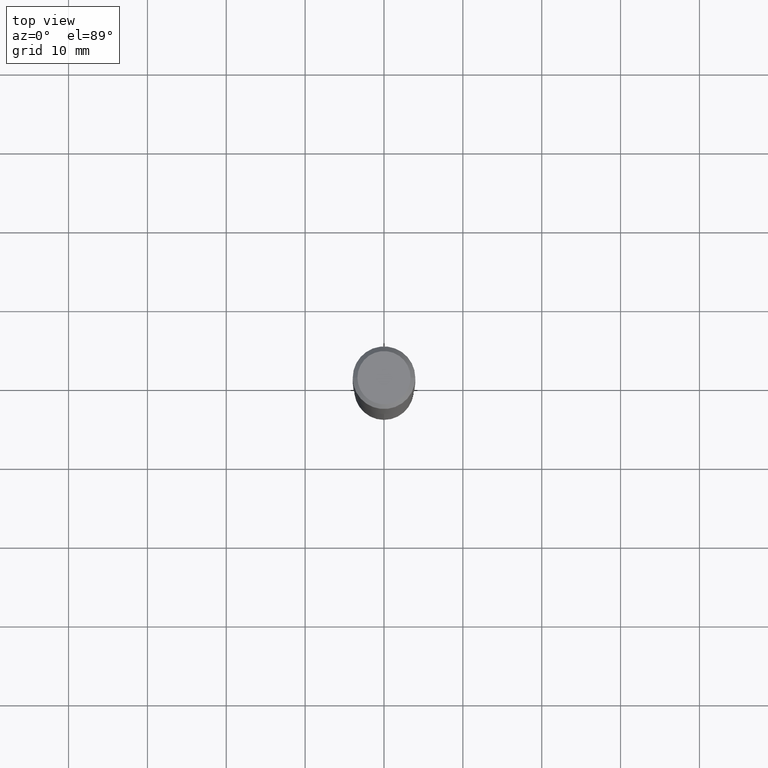
[diagram: clean part render]
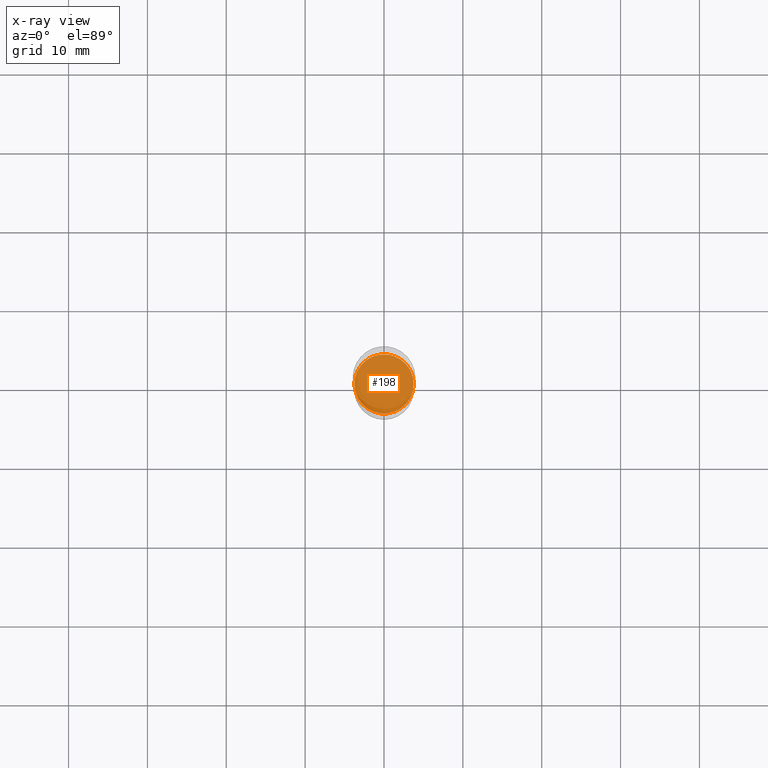
[diagram: x-ray — body ghosted, one internal face saturated and labeled with its STEP entity id]
A machine part, top view, then the same camera in x-ray: the body is ghosted and one INTERNAL B-rep face — a face not visible from any outside direction — is saturated and labeled: STEP entity #198.
In plain terms, the highlighted planar face has unit normal (-0, 0, 1).
Its self-contained STEP definition (entity closure, byte-faithful):
#3 = AXIS2_PLACEMENT_3D ( 'NONE', #272, #83, #237 ) ;
#5 = AXIS2_PLACEMENT_3D ( 'NONE', #128, #175, #470 ) ;
#37 = EDGE_CURVE ( 'NONE', #110, #336, #281, .T. ) ;
#71 = CARTESIAN_POINT ( 'NONE',  ( 4.508955384844155553E-29, -6.437593292558992940E-15, -1.843800000000000106 ) ) ;
#83 = DIRECTION ( 'NONE',  ( -2.445468806185136597E-29, 3.491481338843145583E-15, 1.000000000000000000 ) ) ;
#110 = VERTEX_POINT ( 'NONE', #367 ) ;
#128 = CARTESIAN_POINT ( 'NONE',  ( 4.508955384844155553E-29, -6.437593292558992940E-15, -1.843800000000000106 ) ) ;
#156 = ORIENTED_EDGE ( 'NONE', *, *, #320, .F. ) ;
#175 = DIRECTION ( 'NONE',  ( -2.438088387897960049E-29, 3.491481338843145188E-15, 1.000000000000000000 ) ) ;
#187 = DIRECTION ( 'NONE',  ( -2.445468806185136597E-29, 3.491481338843145583E-15, 1.000000000000000000 ) ) ;
#192 = ORIENTED_EDGE ( 'NONE', *, *, #37, .F. ) ;
#198 = ADVANCED_FACE ( 'NONE', ( #209 ), #324, .F. ) ;
#209 = FACE_OUTER_BOUND ( 'NONE', #267, .T. ) ;
#237 = DIRECTION ( 'NONE',  ( 1.000000000000000000, -6.982962677686265133E-15, 0.000000000000000000 ) ) ;
#266 = CIRCLE ( 'NONE', #333, 0.1479499999999999982 ) ;
#267 = EDGE_LOOP ( 'NONE', ( #192, #156 ) ) ;
#272 = CARTESIAN_POINT ( 'NONE',  ( 4.508955384844155553E-29, -6.437593292558992940E-15, -1.843800000000000106 ) ) ;
#281 = CIRCLE ( 'NONE', #3, 0.1479499999999999982 ) ;
#320 = EDGE_CURVE ( 'NONE', #336, #110, #266, .T. ) ;
#324 = PLANE ( 'NONE',  #5 ) ;
#333 = AXIS2_PLACEMENT_3D ( 'NONE', #71, #187, #343 ) ;
#336 = VERTEX_POINT ( 'NONE', #489 ) ;
#343 = DIRECTION ( 'NONE',  ( 1.000000000000000000, -6.982962677686265133E-15, 0.000000000000000000 ) ) ;
#367 = CARTESIAN_POINT ( 'NONE',  ( 0.1479499999999999982, -7.470722620722675040E-15, -1.843800000000000106 ) ) ;
#470 = DIRECTION ( 'NONE',  ( 1.000000000000000000, -6.982962677686265922E-15, 4.876176775795935793E-29 ) ) ;
#489 = CARTESIAN_POINT ( 'NONE',  ( -0.1479499999999999982, -5.383696087827813330E-15, -1.843800000000000106 ) ) ;